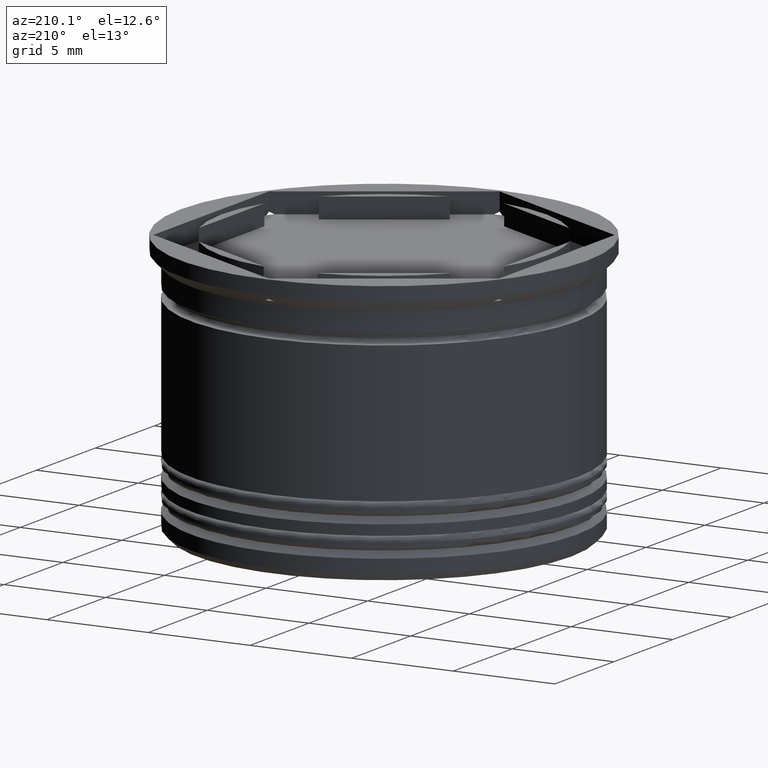
[diagram: clean part render]
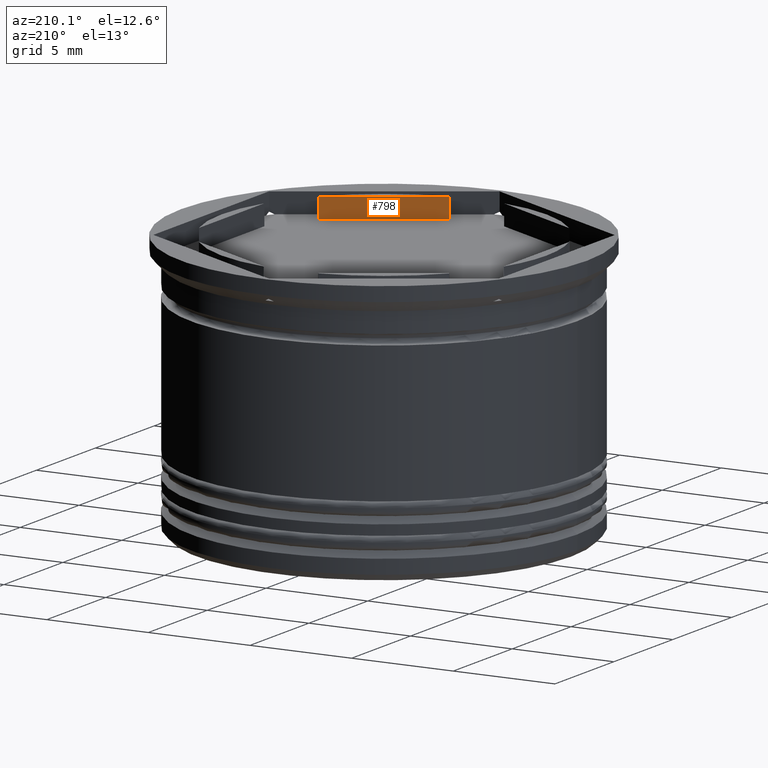
[diagram: same view with one face highlighted and labeled with its STEP entity id]
A machine part, auxiliary view. The second image highlights one B-rep face of the part: STEP entity #798.
In plain terms, the highlighted planar face has unit normal (0.5, -0.866, 0).
Its self-contained STEP definition (entity closure, byte-faithful):
#19 = VERTEX_POINT ( 'NONE', #2002 ) ;
#253 = CARTESIAN_POINT ( 'NONE',  ( 6.160912690248240509, -5.103249437675781763, 22.62741699796951522 ) ) ;
#263 = VECTOR ( 'NONE', #2023, 1000.000000000000000 ) ;
#341 = FACE_OUTER_BOUND ( 'NONE', #1072, .T. ) ;
#352 = VERTEX_POINT ( 'NONE', #604 ) ;
#374 = LINE ( 'NONE', #1694, #679 ) ;
#458 = VERTEX_POINT ( 'NONE', #1880 ) ;
#486 = EDGE_CURVE ( 'NONE', #824, #19, #1212, .T. ) ;
#515 = DIRECTION ( 'NONE',  ( 0.8660254037844388186, 0.4999999999999998335, 0.000000000000000000 ) ) ;
#532 = EDGE_CURVE ( 'NONE', #824, #352, #1291, .T. ) ;
#552 = DIRECTION ( 'NONE',  ( 0.4999999999999998335, -0.8660254037844388186, 0.000000000000000000 ) ) ;
#590 = DIRECTION ( 'NONE',  ( -0.8660254037844388186, -0.4999999999999998335, 0.000000000000000000 ) ) ;
#604 = CARTESIAN_POINT ( 'NONE',  ( 1.339087309751762600, -7.887131619090796519, -1.000000000000000888 ) ) ;
#608 = VECTOR ( 'NONE', #590, 999.9999999999998863 ) ;
#679 = VECTOR ( 'NONE', #515, 999.9999999999998863 ) ;
#681 = LINE ( 'NONE', #1359, #263 ) ;
#798 = ADVANCED_FACE ( 'NONE', ( #341 ), #1483, .F. ) ;
#824 = VERTEX_POINT ( 'NONE', #1876 ) ;
#1072 = EDGE_LOOP ( 'NONE', ( #1396, #1344, #1913, #1655 ) ) ;
#1117 = CARTESIAN_POINT ( 'NONE',  ( -4.336808689942017736E-16, -8.660254037844385522, -1.000000000000000888 ) ) ;
#1208 = AXIS2_PLACEMENT_3D ( 'NONE', #1514, #552, #1555 ) ;
#1212 = LINE ( 'NONE', #253, #2043 ) ;
#1291 = LINE ( 'NONE', #1117, #608 ) ;
#1344 = ORIENTED_EDGE ( 'NONE', *, *, #486, .F. ) ;
#1359 = CARTESIAN_POINT ( 'NONE',  ( 1.339087309751754606, -7.887131619090796519, 22.62741699796951522 ) ) ;
#1396 = ORIENTED_EDGE ( 'NONE', *, *, #1463, .T. ) ;
#1456 = EDGE_CURVE ( 'NONE', #458, #352, #681, .T. ) ;
#1463 = EDGE_CURVE ( 'NONE', #458, #19, #374, .T. ) ;
#1483 = PLANE ( 'NONE',  #1208 ) ;
#1514 = CARTESIAN_POINT ( 'NONE',  ( -4.336808689942017736E-16, -8.660254037844385522, -23.91287847477920181 ) ) ;
#1555 = DIRECTION ( 'NONE',  ( 0.8660254037844387076, 0.4999999999999997780, 0.000000000000000000 ) ) ;
#1655 = ORIENTED_EDGE ( 'NONE', *, *, #1456, .F. ) ;
#1694 = CARTESIAN_POINT ( 'NONE',  ( 3.749999999999997780, -6.495190528383290030, 0.000000000000000000 ) ) ;
#1876 = CARTESIAN_POINT ( 'NONE',  ( 6.160912690248236068, -5.103249437675788869, -1.000000000000000888 ) ) ;
#1880 = CARTESIAN_POINT ( 'NONE',  ( 1.339087309751759047, -7.887131619090794743, 0.000000000000000000 ) ) ;
#1913 = ORIENTED_EDGE ( 'NONE', *, *, #532, .T. ) ;
#2002 = CARTESIAN_POINT ( 'NONE',  ( 6.160912690248237844, -5.103249437675785316, 0.000000000000000000 ) ) ;
#2023 = DIRECTION ( 'NONE',  ( -0.000000000000000000, -0.000000000000000000, -1.000000000000000000 ) ) ;
#2043 = VECTOR ( 'NONE', #2107, 1000.000000000000000 ) ;
#2107 = DIRECTION ( 'NONE',  ( 0.000000000000000000, 0.000000000000000000, 1.000000000000000000 ) ) ;